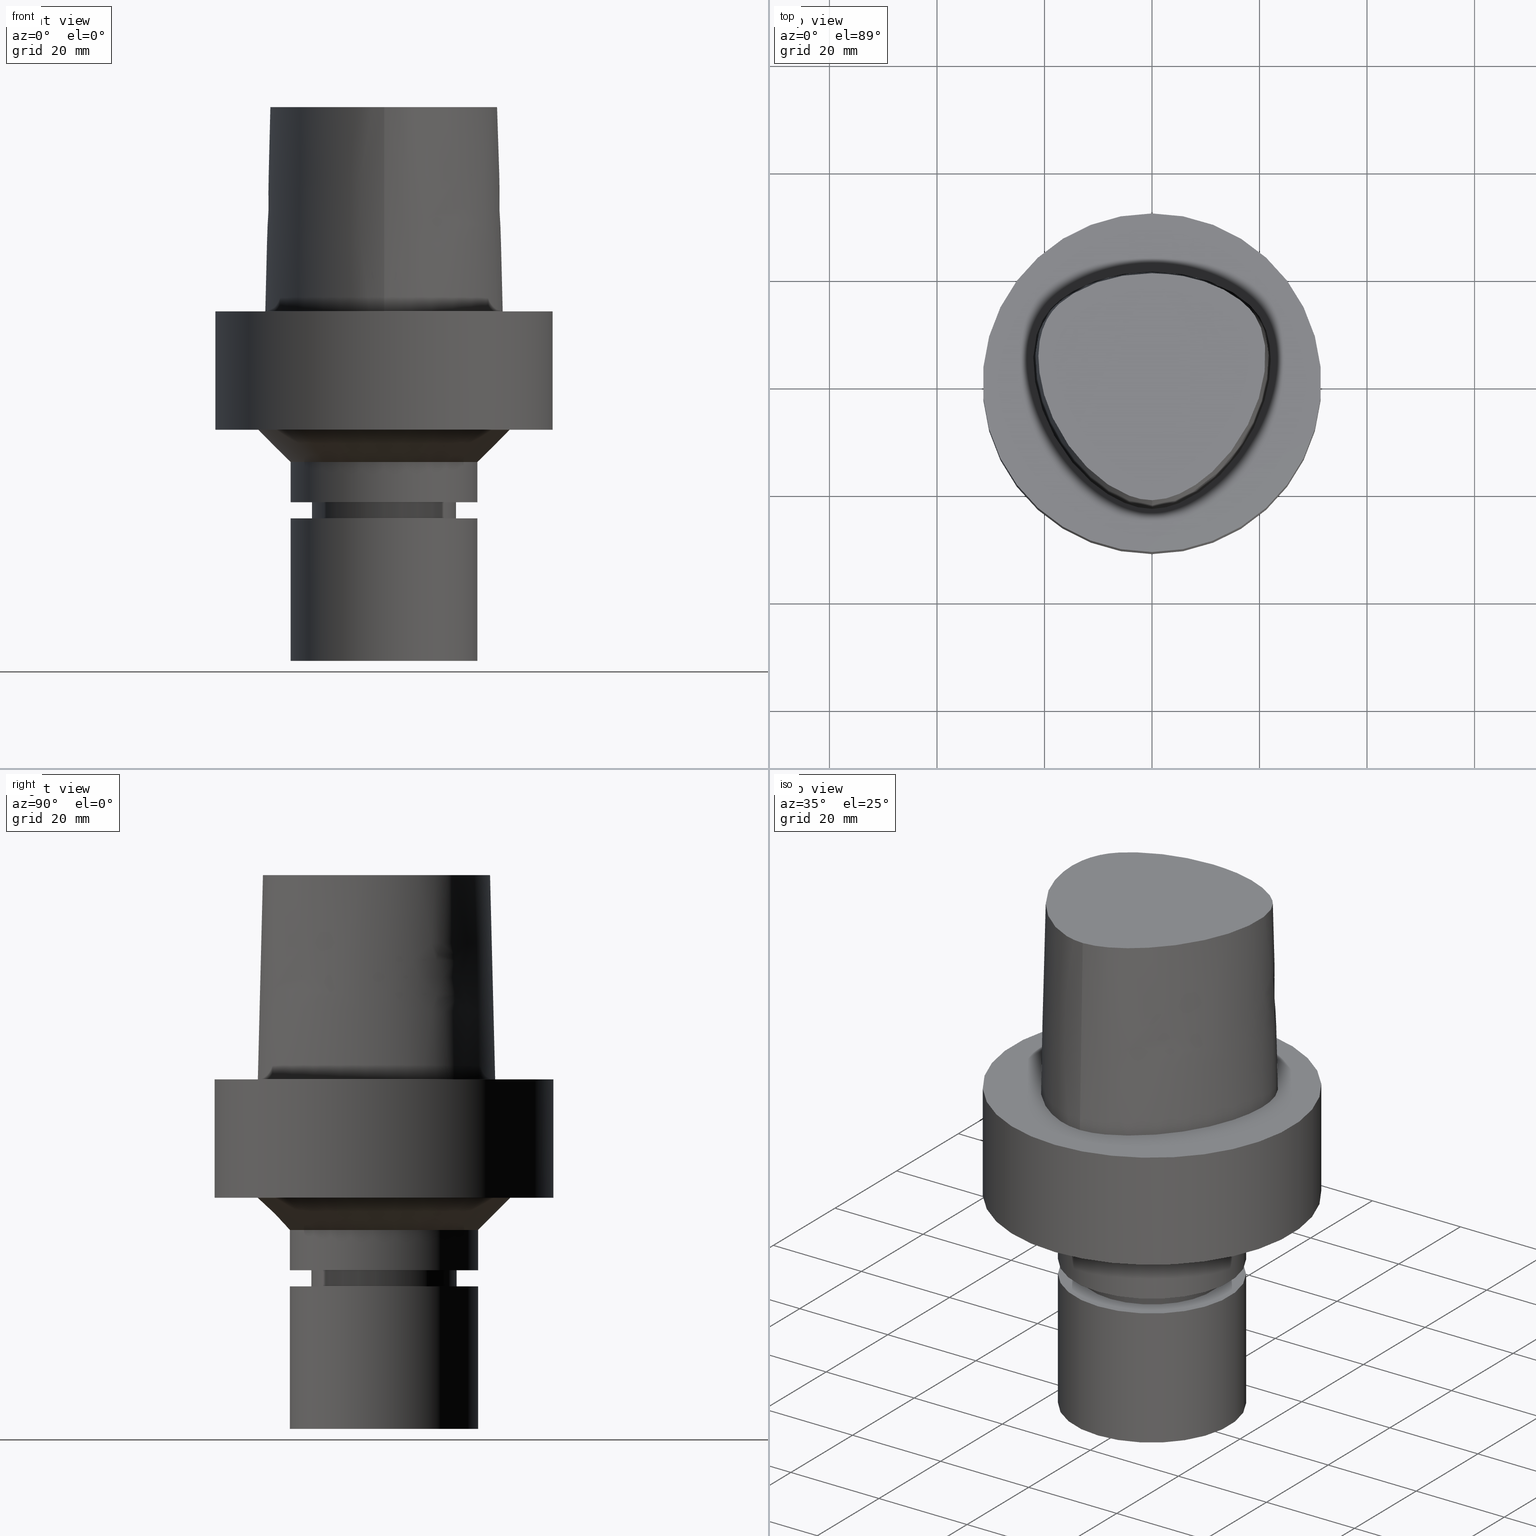
[diagram: canonical four-view strip — front | top / right | iso, engineering-drawing reading convention]
A machine part, canonical four-view strip (front | top / right | iso — engineering-drawing reading convention). The complete STEP part file that produces these views, byte-faithful:
ISO-10303-21;
HEADER;
FILE_DESCRIPTION((''),'1');
FILE_NAME('V:/90_\X2\53D65F9730C730FC30BF\X0\/00_\X2\6DE18DEF30C730FC30BF\X0\/ALL/CAPTO-BKUS\X2\52A05DE556F3\X0\_201801/C6-MEGAER/C6-MEGAER20-65NL.stp','2018-02-01T07:57:22',(''),(''),'Spatial Interop R21 SP3','Kubotek KeyCreator 2011 V10.0.2 (22737)',' ');
FILE_SCHEMA(('automotive_design'));
ENDSEC;
DATA;
#1=MECHANICAL_DESIGN_GEOMETRIC_PRESENTATION_REPRESENTATION(' ',(#14,#15,#16,#17,#18,#19,#20,#21,#22,#23,#24,#25,#26,#27,#28,#29,#30,#31,#32,#33,#34,#35,#36,#37,#38,#39,#40,#41,#42,#43,#44,#45,#46,#47,#48,#49,#50,#51,#52,#53),#10);
#2=PRODUCT_DEFINITION_CONTEXT('',#54,'design');
#3=APPLICATION_PROTOCOL_DEFINITION('INTERNATIONAL STANDARD','automotive_design',1994,#54);
#4=PRODUCT_CATEGORY_RELATIONSHIP('NONE','NONE',#55,#56);
#5=SHAPE_DEFINITION_REPRESENTATION(#57,#58);
#6=PRODUCT_DEFINITION_CONTEXT('',#59,'design');
#7=APPLICATION_PROTOCOL_DEFINITION('INTERNATIONAL STANDARD','automotive_design',1994,#59);
#8=PRODUCT_CATEGORY_RELATIONSHIP('NONE','NONE',#60,#61);
#9=SHAPE_DEFINITION_REPRESENTATION(#62,#63);
#10= (GEOMETRIC_REPRESENTATION_CONTEXT(3)GLOBAL_UNCERTAINTY_ASSIGNED_CONTEXT((#66))GLOBAL_UNIT_ASSIGNED_CONTEXT((#68,#69,#70))REPRESENTATION_CONTEXT('NONE','WORKSPACE'));
#14=STYLED_ITEM('',(#72,#73),#74);
#15=STYLED_ITEM('',(#75,#76),#77);
#16=STYLED_ITEM('',(#78),#79);
#17=STYLED_ITEM('',(#80),#81);
#18=STYLED_ITEM('',(#82),#83);
#19=STYLED_ITEM('',(#84),#85);
#20=STYLED_ITEM('',(#86,#87),#88);
#21=STYLED_ITEM('',(#89,#90),#91);
#22=STYLED_ITEM('',(#92,#93),#94);
#23=STYLED_ITEM('',(#95,#96),#97);
#24=STYLED_ITEM('',(#98),#99);
#25=STYLED_ITEM('',(#100),#101);
#26=STYLED_ITEM('',(#102,#103),#104);
#27=STYLED_ITEM('',(#105),#106);
#28=STYLED_ITEM('',(#107,#108),#109);
#29=STYLED_ITEM('',(#110,#111),#112);
#30=STYLED_ITEM('',(#113),#114);
#31=STYLED_ITEM('',(#115,#116),#117);
#32=STYLED_ITEM('',(#118),#119);
#33=STYLED_ITEM('',(#120,#121),#122);
#34=STYLED_ITEM('',(#123,#124),#125);
#35=STYLED_ITEM('',(#126,#127),#128);
#36=STYLED_ITEM('',(#129,#130),#131);
#37=STYLED_ITEM('',(#132),#133);
#38=STYLED_ITEM('',(#134,#135),#136);
#39=STYLED_ITEM('',(#137),#138);
#40=STYLED_ITEM('',(#139),#140);
#41=STYLED_ITEM('',(#141,#142),#143);
#42=STYLED_ITEM('',(#144),#145);
#43=STYLED_ITEM('',(#146,#147),#148);
#44=STYLED_ITEM('',(#149),#150);
#45=STYLED_ITEM('',(#151),#152);
#46=STYLED_ITEM('',(#153),#154);
#47=STYLED_ITEM('',(#155,#156),#157);
#48=STYLED_ITEM('',(#158),#159);
#49=STYLED_ITEM('',(#160),#161);
#50=STYLED_ITEM('',(#162,#163),#164);
#51=STYLED_ITEM('',(#165),#166);
#52=STYLED_ITEM('',(#167),#168);
#53=STYLED_ITEM('',(#169,#170),#171);
#54=APPLICATION_CONTEXT(' ');
#55=PRODUCT_CATEGORY('part','NONE');
#56=PRODUCT_RELATED_PRODUCT_CATEGORY('detail',' ',(#172));
#57=PRODUCT_DEFINITION_SHAPE('NONE','NONE',#173);
#58=ADVANCED_BREP_SHAPE_REPRESENTATION('Unnamed[1]',(#131,#174),#10);
#59=APPLICATION_CONTEXT(' ');
#60=PRODUCT_CATEGORY('part','NONE');
#61=PRODUCT_RELATED_PRODUCT_CATEGORY('detail',' ',(#175));
#62=PRODUCT_DEFINITION_SHAPE('NONE','NONE',#176);
#63=ADVANCED_BREP_SHAPE_REPRESENTATION('Unnamed[1]',(#125,#177),#10);
#66=UNCERTAINTY_MEASURE_WITH_UNIT(LENGTH_MEASURE(1.0E-006),#68,'','');
#68= (CONVERSION_BASED_UNIT('MILLIMETRE',#180)LENGTH_UNIT()NAMED_UNIT(#183));
#69= (NAMED_UNIT(#185)PLANE_ANGLE_UNIT()SI_UNIT($,.RADIAN.));
#70= (NAMED_UNIT(#185)SOLID_ANGLE_UNIT()SI_UNIT($,.STERADIAN.));
#72=PRESENTATION_STYLE_ASSIGNMENT((#191));
#73=PRESENTATION_STYLE_ASSIGNMENT((#192));
#74=ADVANCED_FACE('Unnamed[1]',(#193),#194,.T.);
#75=PRESENTATION_STYLE_ASSIGNMENT((#195));
#76=PRESENTATION_STYLE_ASSIGNMENT((#196));
#77=ADVANCED_FACE('Unnamed[1]',(#197,#198),#199,.T.);
#78=PRESENTATION_STYLE_ASSIGNMENT((#200));
#79=EDGE_CURVE('Unnamed[1]',#201,#201,#202,.T.);
#80=PRESENTATION_STYLE_ASSIGNMENT((#203));
#81=EDGE_CURVE('Unnamed[1]',#204,#204,#205,.T.);
#82=PRESENTATION_STYLE_ASSIGNMENT((#206));
#83=EDGE_CURVE('Unnamed[1]',#207,#208,#209,.T.);
#84=PRESENTATION_STYLE_ASSIGNMENT((#210));
#85=EDGE_CURVE('Unnamed[1]',#211,#212,#213,.T.);
#86=PRESENTATION_STYLE_ASSIGNMENT((#214));
#87=PRESENTATION_STYLE_ASSIGNMENT((#215));
#88=ADVANCED_FACE('Unnamed[1]',(#216,#217),#218,.T.);
#89=PRESENTATION_STYLE_ASSIGNMENT((#219));
#90=PRESENTATION_STYLE_ASSIGNMENT((#220));
#91=ADVANCED_FACE('Unnamed[1]',(#221,#222),#223,.T.);
#92=PRESENTATION_STYLE_ASSIGNMENT((#224));
#93=PRESENTATION_STYLE_ASSIGNMENT((#225));
#94=ADVANCED_FACE('Unnamed[1]',(#226,#227),#228,.T.);
#95=PRESENTATION_STYLE_ASSIGNMENT((#229));
#96=PRESENTATION_STYLE_ASSIGNMENT((#230));
#97=ADVANCED_FACE('Unnamed[1]',(#231,#232),#233,.T.);
#98=PRESENTATION_STYLE_ASSIGNMENT((#234));
#99=EDGE_CURVE('Unnamed[1]',#235,#211,#236,.T.);
#100=PRESENTATION_STYLE_ASSIGNMENT((#237));
#101=EDGE_CURVE('Unnamed[1]',#238,#238,#239,.T.);
#102=PRESENTATION_STYLE_ASSIGNMENT((#240));
#103=PRESENTATION_STYLE_ASSIGNMENT((#241));
#104=ADVANCED_FACE('Unnamed[1]',(#242),#243,.T.);
#105=PRESENTATION_STYLE_ASSIGNMENT((#244));
#106=EDGE_CURVE('Unnamed[1]',#245,#245,#246,.T.);
#107=PRESENTATION_STYLE_ASSIGNMENT((#247));
#108=PRESENTATION_STYLE_ASSIGNMENT((#248));
#109=ADVANCED_FACE('Unnamed[1]',(#249),#250,.T.);
#110=PRESENTATION_STYLE_ASSIGNMENT((#251));
#111=PRESENTATION_STYLE_ASSIGNMENT((#252));
#112=ADVANCED_FACE('Unnamed[1]',(#253,#254),#255,.T.);
#113=PRESENTATION_STYLE_ASSIGNMENT((#256));
#114=EDGE_CURVE('Unnamed[1]',#208,#207,#257,.T.);
#115=PRESENTATION_STYLE_ASSIGNMENT((#258));
#116=PRESENTATION_STYLE_ASSIGNMENT((#259));
#117=ADVANCED_FACE('Unnamed[1]',(#260,#261),#262,.T.);
#118=PRESENTATION_STYLE_ASSIGNMENT((#263));
#119=EDGE_CURVE('Unnamed[1]',#264,#264,#265,.T.);
#120=PRESENTATION_STYLE_ASSIGNMENT((#266));
#121=PRESENTATION_STYLE_ASSIGNMENT((#267));
#122=ADVANCED_FACE('Unnamed[1]',(#268,#269),#270,.T.);
#123=PRESENTATION_STYLE_ASSIGNMENT((#271));
#124=PRESENTATION_STYLE_ASSIGNMENT((#272));
#125=MANIFOLD_SOLID_BREP('Unnamed[1]',#273);
#126=PRESENTATION_STYLE_ASSIGNMENT((#274));
#127=PRESENTATION_STYLE_ASSIGNMENT((#275));
#128=ADVANCED_FACE('Unnamed[1]',(#276),#277,.T.);
#129=PRESENTATION_STYLE_ASSIGNMENT((#278));
#130=PRESENTATION_STYLE_ASSIGNMENT((#279));
#131=MANIFOLD_SOLID_BREP('Unnamed[1]',#280);
#132=PRESENTATION_STYLE_ASSIGNMENT((#281));
#133=EDGE_CURVE('Unnamed[1]',#208,#235,#282,.T.);
#134=PRESENTATION_STYLE_ASSIGNMENT((#283));
#135=PRESENTATION_STYLE_ASSIGNMENT((#284));
#136=ADVANCED_FACE('Unnamed[1]',(#285,#286),#287,.T.);
#137=PRESENTATION_STYLE_ASSIGNMENT((#288));
#138=EDGE_CURVE('Unnamed[1]',#289,#289,#290,.T.);
#139=PRESENTATION_STYLE_ASSIGNMENT((#291));
#140=EDGE_CURVE('Unnamed[1]',#292,#292,#293,.T.);
#141=PRESENTATION_STYLE_ASSIGNMENT((#294));
#142=PRESENTATION_STYLE_ASSIGNMENT((#295));
#143=ADVANCED_FACE('Unnamed[1]',(#296,#297),#298,.T.);
#144=PRESENTATION_STYLE_ASSIGNMENT((#299));
#145=EDGE_CURVE('Unnamed[1]',#300,#300,#301,.T.);
#146=PRESENTATION_STYLE_ASSIGNMENT((#302));
#147=PRESENTATION_STYLE_ASSIGNMENT((#303));
#148=ADVANCED_FACE('Unnamed[1]',(#304,#305),#306,.T.);
#149=PRESENTATION_STYLE_ASSIGNMENT((#307));
#150=EDGE_CURVE('Unnamed[1]',#212,#235,#308,.T.);
#151=PRESENTATION_STYLE_ASSIGNMENT((#309));
#152=EDGE_CURVE('Unnamed[1]',#310,#310,#311,.T.);
#153=PRESENTATION_STYLE_ASSIGNMENT((#312));
#154=EDGE_CURVE('Unnamed[1]',#313,#313,#314,.T.);
#155=PRESENTATION_STYLE_ASSIGNMENT((#315));
#156=PRESENTATION_STYLE_ASSIGNMENT((#316));
#157=ADVANCED_FACE('Unnamed[1]',(#317),#318,.T.);
#158=PRESENTATION_STYLE_ASSIGNMENT((#319));
#159=EDGE_CURVE('Unnamed[1]',#320,#320,#321,.T.);
#160=PRESENTATION_STYLE_ASSIGNMENT((#322));
#161=EDGE_CURVE('Unnamed[1]',#323,#323,#324,.T.);
#162=PRESENTATION_STYLE_ASSIGNMENT((#325));
#163=PRESENTATION_STYLE_ASSIGNMENT((#326));
#164=ADVANCED_FACE('Unnamed[1]',(#327),#328,.T.);
#165=PRESENTATION_STYLE_ASSIGNMENT((#329));
#166=EDGE_CURVE('Unnamed[1]',#207,#212,#330,.T.);
#167=PRESENTATION_STYLE_ASSIGNMENT((#331));
#168=EDGE_CURVE('Unnamed[1]',#208,#211,#332,.T.);
#169=PRESENTATION_STYLE_ASSIGNMENT((#333));
#170=PRESENTATION_STYLE_ASSIGNMENT((#334));
#171=ADVANCED_FACE('Unnamed[1]',(#335),#336,.T.);
#172=PRODUCT('Unnamed[1]','Unnamed[1]','PART-Unnamed[1]-DESC',(#337));
#173=PRODUCT_DEFINITION('NONE','NONE',#338,#2);
#174=AXIS2_PLACEMENT_3D('',#339,#340,#341);
#175=PRODUCT('Unnamed[1]','Unnamed[1]','PART-Unnamed[1]-DESC',(#342));
#176=PRODUCT_DEFINITION('NONE','NONE',#343,#6);
#177=AXIS2_PLACEMENT_3D('',#344,#345,#346);
#180=LENGTH_MEASURE_WITH_UNIT(LENGTH_MEASURE(1.0),#347);
#183=DIMENSIONAL_EXPONENTS(1.0,0.0,0.0,0.0,0.0,0.0,0.0);
#185=DIMENSIONAL_EXPONENTS(0.0,0.0,0.0,0.0,0.0,0.0,0.0);
#191=SURFACE_STYLE_USAGE(.BOTH.,#348);
#192=CURVE_STYLE('',#349,POSITIVE_LENGTH_MEASURE(1000.0),#350);
#193=FACE_OUTER_BOUND('',#351,.T.);
#194=CONICAL_SURFACE('',#352,1.0,0.0249931148600041);
#195=SURFACE_STYLE_USAGE(.BOTH.,#353);
#196=CURVE_STYLE('',#354,POSITIVE_LENGTH_MEASURE(1000.0),#355);
#197=FACE_BOUND('',#356,.T.);
#198=FACE_OUTER_BOUND('',#357,.T.);
#199=PLANE('',#358);
#200=CURVE_STYLE('',#359,POSITIVE_LENGTH_MEASURE(1000.0),#360);
#201=VERTEX_POINT('',#361);
#202=CIRCLE('',#362,17.4999999999999);
#203=CURVE_STYLE('',#363,POSITIVE_LENGTH_MEASURE(1000.0),#364);
#204=VERTEX_POINT('',#365);
#205=CIRCLE('',#366,12.4999999999999);
#206=CURVE_STYLE('',#367,POSITIVE_LENGTH_MEASURE(1000.0),#368);
#207=VERTEX_POINT('',#369);
#208=VERTEX_POINT('',#370);
#209=B_SPLINE_CURVE_WITH_KNOTS('',3,(#371,#372,#373,#374,#375,#376,#377,#378,#379,#380,#381,#382,#383,#384,#385,#386),.UNSPECIFIED.,.F.,.F.,(4,1,1,1,1,1,1,1,1,1,1,1,1,4),(6.61513393087476,6.99917207152274,7.48193246986995,7.96289324787093,8.45540287038584,9.10291653679981,9.67129810936083,10.1618749681153,10.6358867802489,11.1080734988593,11.6043706019633,12.09451993853,12.6985979284494,13.2302678617486),.UNSPECIFIED.);
#210=CURVE_STYLE('',#387,POSITIVE_LENGTH_MEASURE(1000.0),#388);
#211=VERTEX_POINT('',#389);
#212=VERTEX_POINT('',#390);
#213=B_SPLINE_CURVE_WITH_KNOTS('',3,(#391,#392,#393,#394,#395,#396,#397,#398,#399,#400,#401,#402,#403,#404,#405,#406,#407),.UNSPECIFIED.,.F.,.F.,(4,1,1,1,1,1,1,1,1,1,1,1,1,1,4),(-13.2302678617486,-12.816821991069,-12.4033761203893,-11.9899302497097,-11.57648437903,-11.1630385083504,-10.9563155730106,-10.7495926376707,-10.3361467669911,-9.92270089631145,-9.09580915495216,-8.26891741359287,-7.44202567223358,-7.02857980155394,-6.6151339308743),.UNSPECIFIED.);
#214=SURFACE_STYLE_USAGE(.BOTH.,#408);
#215=CURVE_STYLE('',#409,POSITIVE_LENGTH_MEASURE(1000.0),#410);
#216=FACE_BOUND('',#411,.T.);
#217=FACE_OUTER_BOUND('',#412,.T.);
#218=PLANE('',#413);
#219=SURFACE_STYLE_USAGE(.BOTH.,#414);
#220=CURVE_STYLE('',#415,POSITIVE_LENGTH_MEASURE(1000.0),#416);
#221=FACE_BOUND('',#417,.T.);
#222=FACE_BOUND('',#418,.T.);
#223=CYLINDRICAL_SURFACE('',#419,13.4999999999956);
#224=SURFACE_STYLE_USAGE(.BOTH.,#420);
#225=CURVE_STYLE('',#421,POSITIVE_LENGTH_MEASURE(1000.0),#422);
#226=FACE_BOUND('',#423,.T.);
#227=FACE_BOUND('',#424,.T.);
#228=CYLINDRICAL_SURFACE('',#425,12.4999999999999);
#229=SURFACE_STYLE_USAGE(.BOTH.,#426);
#230=CURVE_STYLE('',#427,POSITIVE_LENGTH_MEASURE(1000.0),#428);
#231=FACE_BOUND('',#429,.T.);
#232=FACE_OUTER_BOUND('',#430,.T.);
#233=PLANE('',#431);
#234=CURVE_STYLE('',#432,POSITIVE_LENGTH_MEASURE(1000.0),#433);
#235=VERTEX_POINT('',#434);
#236=CIRCLE('',#435,0.949936168436318);
#237=CURVE_STYLE('',#436,POSITIVE_LENGTH_MEASURE(1000.0),#437);
#238=VERTEX_POINT('',#438);
#239=CIRCLE('',#439,23.5);
#240=SURFACE_STYLE_USAGE(.BOTH.,#440);
#241=CURVE_STYLE('',#441,POSITIVE_LENGTH_MEASURE(1000.0),#442);
#242=FACE_OUTER_BOUND('',#443,.T.);
#243=PLANE('',#444);
#244=CURVE_STYLE('',#445,POSITIVE_LENGTH_MEASURE(1000.0),#446);
#245=VERTEX_POINT('',#447);
#246=CIRCLE('',#448,11.3999999999977);
#247=SURFACE_STYLE_USAGE(.BOTH.,#449);
#248=CURVE_STYLE('',#450,POSITIVE_LENGTH_MEASURE(1000.0),#451);
#249=FACE_OUTER_BOUND('',#452,.T.);
#250=PLANE('',#453);
#251=SURFACE_STYLE_USAGE(.BOTH.,#454);
#252=CURVE_STYLE('',#455,POSITIVE_LENGTH_MEASURE(1000.0),#456);
#253=FACE_BOUND('',#457,.T.);
#254=FACE_BOUND('',#458,.T.);
#255=CYLINDRICAL_SURFACE('',#459,17.5);
#256=CURVE_STYLE('',#460,POSITIVE_LENGTH_MEASURE(1000.0),#461);
#257=B_SPLINE_CURVE_WITH_KNOTS('',3,(#462,#463,#464,#465,#466,#467,#468,#469,#470,#471,#472,#473,#474,#475,#476,#477),.UNSPECIFIED.,.F.,.F.,(4,1,1,1,1,1,1,1,1,1,1,1,1,4),(0.0,0.447924670568964,0.9388024242536,1.50591409090711,2.07314340012323,2.72424957442464,3.2253501842849,3.80982102049476,4.34867996267067,4.85900173381144,5.37972031856977,6.03459825488646,6.61113557741484,6.61513393087395),.UNSPECIFIED.);
#258=SURFACE_STYLE_USAGE(.BOTH.,#478);
#259=CURVE_STYLE('',#479,POSITIVE_LENGTH_MEASURE(1000.0),#480);
#260=FACE_BOUND('',#481,.T.);
#261=FACE_BOUND('',#482,.T.);
#262=CYLINDRICAL_SURFACE('',#483,17.4999999999999);
#263=CURVE_STYLE('',#484,POSITIVE_LENGTH_MEASURE(1000.0),#485);
#264=VERTEX_POINT('',#486);
#265=CIRCLE('',#487,17.5);
#266=SURFACE_STYLE_USAGE(.BOTH.,#488);
#267=CURVE_STYLE('',#489,POSITIVE_LENGTH_MEASURE(1000.0),#490);
#268=FACE_BOUND('',#491,.T.);
#269=FACE_BOUND('',#492,.T.);
#270=CONICAL_SURFACE('',#493,20.5,0.785398163397451);
#271=SURFACE_STYLE_USAGE(.BOTH.,#494);
#272=CURVE_STYLE('',#495,POSITIVE_LENGTH_MEASURE(1000.0),#496);
#273=CLOSED_SHELL('',(#157,#109,#112));
#274=SURFACE_STYLE_USAGE(.BOTH.,#497);
#275=CURVE_STYLE('',#498,POSITIVE_LENGTH_MEASURE(1000.0),#499);
#276=FACE_OUTER_BOUND('',#500,.T.);
#277=PLANE('',#501);
#278=SURFACE_STYLE_USAGE(.BOTH.,#502);
#279=CURVE_STYLE('',#503,POSITIVE_LENGTH_MEASURE(1000.0),#504);
#280=CLOSED_SHELL('',(#164,#171,#74,#128,#97,#143,#77,#122,#117,#88,#91,#136,#94,#148,#104));
#281=CURVE_STYLE('',#505,POSITIVE_LENGTH_MEASURE(1000.0),#506);
#282=LINE('',#507,#508);
#283=SURFACE_STYLE_USAGE(.BOTH.,#509);
#284=CURVE_STYLE('',#510,POSITIVE_LENGTH_MEASURE(1000.0),#511);
#285=FACE_BOUND('',#512,.T.);
#286=FACE_BOUND('',#513,.T.);
#287=CONICAL_SURFACE('',#514,13.0000000000002,1.04719755119486);
#288=CURVE_STYLE('',#515,POSITIVE_LENGTH_MEASURE(1000.0),#516);
#289=VERTEX_POINT('',#517);
#290=CIRCLE('',#518,31.5);
#291=CURVE_STYLE('',#519,POSITIVE_LENGTH_MEASURE(1000.0),#520);
#292=VERTEX_POINT('',#521);
#293=CIRCLE('',#522,17.5);
#294=SURFACE_STYLE_USAGE(.BOTH.,#523);
#295=CURVE_STYLE('',#524,POSITIVE_LENGTH_MEASURE(1000.0),#525);
#296=FACE_BOUND('',#526,.T.);
#297=FACE_BOUND('',#527,.T.);
#298=CYLINDRICAL_SURFACE('',#528,31.5);
#299=CURVE_STYLE('',#529,POSITIVE_LENGTH_MEASURE(1000.0),#530);
#300=VERTEX_POINT('',#531);
#301=CIRCLE('',#532,17.4999999999999);
#302=SURFACE_STYLE_USAGE(.BOTH.,#533);
#303=CURVE_STYLE('',#534,POSITIVE_LENGTH_MEASURE(1000.0),#535);
#304=FACE_BOUND('',#536,.T.);
#305=FACE_BOUND('',#537,.T.);
#306=CONICAL_SURFACE('',#538,11.9499999999988,0.523598775598662);
#307=CURVE_STYLE('',#539,POSITIVE_LENGTH_MEASURE(1000.0),#540);
#308=B_SPLINE_CURVE_WITH_KNOTS('',3,(#541,#542,#543,#544,#545,#546,#547,#548,#549,#550,#551,#552,#553,#554,#555,#556,#557,#558),.UNSPECIFIED.,.F.,.F.,(4,1,1,1,1,1,1,1,1,2,1,1,1,1,4),(-6.6151339308743,-6.20168806019465,-5.78824218951501,-5.37479631883537,-4.96135044815572,-4.13445870679644,-3.30756696543715,-2.89412109475751,-2.48067522407786,-2.06722935339822,-1.65378348271857,-1.24033761203893,-0.826891741359287,-0.413445870679644,0.0),.UNSPECIFIED.);
#309=CURVE_STYLE('',#559,POSITIVE_LENGTH_MEASURE(1000.0),#560);
#310=VERTEX_POINT('',#561);
#311=CIRCLE('',#562,31.5);
#312=CURVE_STYLE('',#563,POSITIVE_LENGTH_MEASURE(1000.0),#564);
#313=VERTEX_POINT('',#565);
#314=CIRCLE('',#566,13.5000000000005);
#315=SURFACE_STYLE_USAGE(.BOTH.,#567);
#316=CURVE_STYLE('',#568,POSITIVE_LENGTH_MEASURE(1000.0),#569);
#317=FACE_OUTER_BOUND('',#570,.T.);
#318=PLANE('',#571);
#319=CURVE_STYLE('',#572,POSITIVE_LENGTH_MEASURE(1000.0),#573);
#320=VERTEX_POINT('',#574);
#321=CIRCLE('',#575,13.4999999999908);
#322=CURVE_STYLE('',#576,POSITIVE_LENGTH_MEASURE(1000.0),#577);
#323=VERTEX_POINT('',#578);
#324=CIRCLE('',#579,12.4999999999998);
#325=SURFACE_STYLE_USAGE(.BOTH.,#580);
#326=CURVE_STYLE('',#581,POSITIVE_LENGTH_MEASURE(1000.0),#582);
#327=FACE_OUTER_BOUND('',#583,.T.);
#328=B_SPLINE_SURFACE_WITH_KNOTS('',3,3,((#584,#585,#586,#587),(#588,#589,#590,#591),(#592,#593,#594,#595),(#596,#597,#598,#599),(#600,#601,#602,#603),(#604,#605,#606,#607),(#608,#609,#610,#611),(#612,#613,#614,#615),(#616,#617,#618,#619),(#620,#621,#622,#623),(#624,#625,#626,#627),(#628,#629,#630,#631),(#632,#633,#634,#635),(#636,#637,#638,#639),(#640,#641,#642,#643),(#644,#645,#646,#647),(#648,#649,#650,#651)),.UNSPECIFIED.,.F.,.F.,.F.,(4,1,1,1,1,1,1,1,1,1,1,1,1,1,4),(4,4),(-13.2302678617486,-12.816821991069,-12.4033761203893,-11.9899302497097,-11.57648437903,-11.1630385083504,-10.9563155730106,-10.7495926376707,-10.3361467669911,-9.92270089631145,-9.09580915495216,-8.26891741359287,-7.44202567223358,-7.02857980155394,-6.6151339308743),(-3.8,0.0),.UNSPECIFIED.);
#329=CURVE_STYLE('',#652,POSITIVE_LENGTH_MEASURE(1000.0),#653);
#330=LINE('',#654,#655);
#331=CURVE_STYLE('',#656,POSITIVE_LENGTH_MEASURE(1000.0),#657);
#332=LINE('',#658,#659);
#333=SURFACE_STYLE_USAGE(.BOTH.,#660);
#334=CURVE_STYLE('',#661,POSITIVE_LENGTH_MEASURE(1000.0),#662);
#335=FACE_OUTER_BOUND('',#663,.T.);
#336=B_SPLINE_SURFACE_WITH_KNOTS('',3,3,((#664,#665,#666,#667),(#668,#669,#670,#671),(#672,#673,#674,#675),(#676,#677,#678,#679),(#680,#681,#682,#683),(#684,#685,#686,#687),(#688,#689,#690,#691),(#692,#693,#694,#695),(#696,#697,#698,#699),(#700,#701,#702,#703),(#704,#705,#706,#707),(#708,#709,#710,#711),(#712,#713,#714,#715),(#716,#717,#718,#719),(#720,#721,#722,#723),(#724,#725,#726,#727),(#728,#729,#730,#731),(#732,#733,#734,#735)),.UNSPECIFIED.,.F.,.F.,.F.,(4,1,1,1,1,1,1,1,1,2,1,1,1,1,4),(4,4),(-6.6151339308743,-6.20168806019465,-5.78824218951501,-5.37479631883537,-4.96135044815572,-4.13445870679644,-3.30756696543715,-2.89412109475751,-2.48067522407786,-2.06722935339822,-1.65378348271857,-1.24033761203893,-0.826891741359287,-0.413445870679644,0.0),(-3.8,0.0),.UNSPECIFIED.);
#337=PRODUCT_CONTEXT('',#54,'mechanical');
#338=PRODUCT_DEFINITION_FORMATION_WITH_SPECIFIED_SOURCE(' ','NONE',#172,.NOT_KNOWN.);
#339=CARTESIAN_POINT('',(0.0,0.0,0.0));
#340=DIRECTION('',(0.0,0.0,1.0));
#341=DIRECTION('',(1.0,0.0,0.0));
#342=PRODUCT_CONTEXT('',#59,'mechanical');
#343=PRODUCT_DEFINITION_FORMATION_WITH_SPECIFIED_SOURCE(' ','NONE',#175,.NOT_KNOWN.);
#344=CARTESIAN_POINT('',(0.0,0.0,0.0));
#345=DIRECTION('',(0.0,0.0,1.0));
#346=DIRECTION('',(1.0,0.0,0.0));
#347= (NAMED_UNIT(#183)LENGTH_UNIT()SI_UNIT(.MILLI.,.METRE.));
#348=SURFACE_SIDE_STYLE('',(#737));
#349=DRAUGHTING_PRE_DEFINED_CURVE_FONT('continuous');
#350=COLOUR_RGB('',0.0,1.0,0.0);
#351=EDGE_LOOP('',(#738,#739,#740));
#352=AXIS2_PLACEMENT_3D('',#741,#742,#743);
#353=SURFACE_SIDE_STYLE('',(#744));
#354=DRAUGHTING_PRE_DEFINED_CURVE_FONT('continuous');
#355=COLOUR_RGB('',0.0,1.0,0.0);
#356=EDGE_LOOP('',(#745));
#357=EDGE_LOOP('',(#746));
#358=AXIS2_PLACEMENT_3D('',#747,#748,#749);
#359=DRAUGHTING_PRE_DEFINED_CURVE_FONT('continuous');
#360=COLOUR_RGB('',0.0,1.0,0.0);
#361=CARTESIAN_POINT('',(2.17374806848654E-015,17.4999999999999,-35.4999999999998));
#362=AXIS2_PLACEMENT_3D('',#750,#751,#752);
#363=DRAUGHTING_PRE_DEFINED_CURVE_FONT('continuous');
#364=COLOUR_RGB('',0.0,1.0,0.0);
#365=CARTESIAN_POINT('',(2.56561515194494E-015,12.4999999999999,-41.8996751345975));
#366=AXIS2_PLACEMENT_3D('',#753,#754,#755);
#367=DRAUGHTING_PRE_DEFINED_CURVE_FONT('continuous');
#368=COLOUR_RGB('',0.0,1.0,0.0);
#369=CARTESIAN_POINT('',(0.038736923393866,-22.5191997536361,38.0));
#370=CARTESIAN_POINT('',(-0.001218547003662,19.7276821925089,38.0));
#371=CARTESIAN_POINT('',(0.038736923394311,-22.519199753636,38.0));
#372=CARTESIAN_POINT('',(1.31742058183662,-22.512662269405,38.0));
#373=CARTESIAN_POINT('',(4.2093773447498,-21.9116226439989,38.0));
#374=CARTESIAN_POINT('',(8.20895504542113,-19.7798683845067,38.0));
#375=CARTESIAN_POINT('',(11.9784633234593,-16.681663904162,38.0));
#376=CARTESIAN_POINT('',(15.5308821579362,-12.5807487594113,38.0));
#377=CARTESIAN_POINT('',(18.4566248438667,-7.64932246015528,38.0));
#378=CARTESIAN_POINT('',(20.4036090752029,-2.27012499825289,38.0));
#379=CARTESIAN_POINT('',(21.2357187429189,2.79891401173156,38.0));
#380=CARTESIAN_POINT('',(21.0811206267748,7.62543090736657,38.0));
#381=CARTESIAN_POINT('',(19.3383577336563,12.2772250726194,38.0));
#382=CARTESIAN_POINT('',(15.5796322014404,15.5799672120682,38.0));
#383=CARTESIAN_POINT('',(10.8392956074438,17.9834601687347,38.0));
#384=CARTESIAN_POINT('',(5.56068045850571,19.4586143858472,38.0));
#385=CARTESIAN_POINT('',(1.77223893711014,19.6418877095654,38.0));
#386=CARTESIAN_POINT('',(-0.001218367817519,19.7276822012873,38.0));
#387=DRAUGHTING_PRE_DEFINED_CURVE_FONT('continuous');
#388=COLOUR_RGB('',0.0,1.0,0.0);
#389=CARTESIAN_POINT('',(0.044682985379347,20.6765087343109,1.61778115328528E-031));
#390=CARTESIAN_POINT('',(0.04359356758149,-23.4691235068931,7.78075697532443E-032));
#391=CARTESIAN_POINT('',(0.044682985379347,20.6765087343109,1.61778115328528E-031));
#392=CARTESIAN_POINT('',(1.42379272427753,20.6097915814392,8.62816615085482E-032));
#393=CARTESIAN_POINT('',(4.2230955003445,20.4837538303966,1.4791141972894E-031));
#394=CARTESIAN_POINT('',(8.47220762821777,19.6890432607088,9.86076131526265E-032));
#395=CARTESIAN_POINT('',(12.5141247708253,18.2434968480404,0.0));
#396=CARTESIAN_POINT('',(16.3038624872874,16.1734192182143,1.97215226305253E-031));
#397=CARTESIAN_POINT('',(19.1446913988473,13.7036723639434,-1.97215226305253E-031));
#398=CARTESIAN_POINT('',(20.7319894342149,11.1014620996188,0.0));
#399=CARTESIAN_POINT('',(21.7831756505763,8.28099229708081,-1.97215226305253E-031));
#400=CARTESIAN_POINT('',(22.2258240701438,4.60865440596506,0.0));
#401=CARTESIAN_POINT('',(21.7436130080666,-1.11326526354485,0.0));
#402=CARTESIAN_POINT('',(19.5519487660502,-7.95432366164584,0.0));
#403=CARTESIAN_POINT('',(14.9574167123838,-15.2089785567293,0.0));
#404=CARTESIAN_POINT('',(9.66840283021945,-20.0827414369705,-9.86076131526265E-032));
#405=CARTESIAN_POINT('',(4.51628650521788,-22.7946374572188,-9.86076131526265E-032));
#406=CARTESIAN_POINT('',(1.55867251738073,-23.4612972770043,-1.23259516440783E-032));
#407=CARTESIAN_POINT('',(0.04359356758149,-23.4691235068931,7.78075697532443E-032));
#408=SURFACE_SIDE_STYLE('',(#756));
#409=DRAUGHTING_PRE_DEFINED_CURVE_FONT('continuous');
#410=COLOUR_RGB('',0.0,1.0,0.0);
#411=EDGE_LOOP('',(#757));
#412=EDGE_LOOP('',(#758));
#413=AXIS2_PLACEMENT_3D('',#759,#760,#761);
#414=SURFACE_SIDE_STYLE('',(#762));
#415=DRAUGHTING_PRE_DEFINED_CURVE_FONT('continuous');
#416=COLOUR_RGB('',0.0,1.0,0.0);
#417=EDGE_LOOP('',(#763));
#418=EDGE_LOOP('',(#764));
#419=AXIS2_PLACEMENT_3D('',#765,#766,#767);
#420=SURFACE_SIDE_STYLE('',(#768));
#421=DRAUGHTING_PRE_DEFINED_CURVE_FONT('continuous');
#422=COLOUR_RGB('',0.0,1.0,0.0);
#423=EDGE_LOOP('',(#769));
#424=EDGE_LOOP('',(#770));
#425=AXIS2_PLACEMENT_3D('',#771,#772,#773);
#426=SURFACE_SIDE_STYLE('',(#774));
#427=DRAUGHTING_PRE_DEFINED_CURVE_FONT('continuous');
#428=COLOUR_RGB('',0.0,1.0,0.0);
#429=EDGE_LOOP('',(#775,#776,#777));
#430=EDGE_LOOP('',(#778));
#431=AXIS2_PLACEMENT_3D('',#779,#780,#781);
#432=DRAUGHTING_PRE_DEFINED_CURVE_FONT('continuous');
#433=COLOUR_RGB('',0.0,1.0,0.0);
#434=CARTESIAN_POINT('',(-0.045171994691285,20.6766009553285,1.6755590516169E-031));
#435=AXIS2_PLACEMENT_3D('',#782,#783,#784);
#436=DRAUGHTING_PRE_DEFINED_CURVE_FONT('continuous');
#437=COLOUR_RGB('',0.0,1.0,0.0);
#438=CARTESIAN_POINT('',(1.34711147906209E-015,23.5,-22.0));
#439=AXIS2_PLACEMENT_3D('',#785,#786,#787);
#440=SURFACE_SIDE_STYLE('',(#788));
#441=DRAUGHTING_PRE_DEFINED_CURVE_FONT('continuous');
#442=COLOUR_RGB('',0.0,1.0,0.0);
#443=EDGE_LOOP('',(#789));
#444=AXIS2_PLACEMENT_3D('',#790,#791,#792);
#445=DRAUGHTING_PRE_DEFINED_CURVE_FONT('continuous');
#446=COLOUR_RGB('',0.0,1.0,0.0);
#447=CARTESIAN_POINT('',(3.38002516564671E-015,11.3999999999977,-55.2000000000003));
#448=AXIS2_PLACEMENT_3D('',#793,#794,#795);
#449=SURFACE_SIDE_STYLE('',(#796));
#450=DRAUGHTING_PRE_DEFINED_CURVE_FONT('continuous');
#451=COLOUR_RGB('',0.0,1.0,0.0);
#452=EDGE_LOOP('',(#797));
#453=AXIS2_PLACEMENT_3D('',#798,#799,#800);
#454=SURFACE_SIDE_STYLE('',(#801));
#455=DRAUGHTING_PRE_DEFINED_CURVE_FONT('continuous');
#456=COLOUR_RGB('',0.0,1.0,0.0);
#457=EDGE_LOOP('',(#802));
#458=EDGE_LOOP('',(#803));
#459=AXIS2_PLACEMENT_3D('',#804,#805,#806);
#460=DRAUGHTING_PRE_DEFINED_CURVE_FONT('continuous');
#461=COLOUR_RGB('',0.0,1.0,0.0);
#462=CARTESIAN_POINT('',(-0.001218547003662,19.7276821925089,38.0));
#463=CARTESIAN_POINT('',(-1.49408492138443,19.6585333605309,38.0));
#464=CARTESIAN_POINT('',(-4.62297391420352,19.513604770166,38.0));
#465=CARTESIAN_POINT('',(-9.56160616752212,18.4291575730197,38.0));
#466=CARTESIAN_POINT('',(-14.5427684976927,16.2697452580488,38.0));
#467=CARTESIAN_POINT('',(-19.4315563551602,12.5302108980807,38.0));
#468=CARTESIAN_POINT('',(-21.306358833612,6.76352894547076,38.0));
#469=CARTESIAN_POINT('',(-21.0724946936277,0.957075236984038,38.0));
#470=CARTESIAN_POINT('',(-19.7876470880144,-4.34628503581652,38.0));
#471=CARTESIAN_POINT('',(-17.5396999600095,-9.33314444653089,38.0));
#472=CARTESIAN_POINT('',(-14.645447733857,-13.7185760345629,38.0));
#473=CARTESIAN_POINT('',(-10.7996726536643,-17.856257282137,38.0));
#474=CARTESIAN_POINT('',(-6.00479510196376,-21.2687382067675,38.0));
#475=CARTESIAN_POINT('',(-1.90747171908525,-22.5250621415864,38.0));
#476=CARTESIAN_POINT('',(0.025424107066464,-22.5192678176378,38.0));
#477=CARTESIAN_POINT('',(0.038736923394311,-22.519199753636,38.0));
#478=SURFACE_SIDE_STYLE('',(#807));
#479=DRAUGHTING_PRE_DEFINED_CURVE_FONT('continuous');
#480=COLOUR_RGB('',0.0,1.0,0.0);
#481=EDGE_LOOP('',(#808));
#482=EDGE_LOOP('',(#809));
#483=AXIS2_PLACEMENT_3D('',#810,#811,#812);
#484=DRAUGHTING_PRE_DEFINED_CURVE_FONT('continuous');
#485=COLOUR_RGB('',0.0,1.0,0.0);
#486=CARTESIAN_POINT('',(3.98010209722889E-015,17.5,-64.9999999999999));
#487=AXIS2_PLACEMENT_3D('',#813,#814,#815);
#488=SURFACE_SIDE_STYLE('',(#816));
#489=DRAUGHTING_PRE_DEFINED_CURVE_FONT('continuous');
#490=COLOUR_RGB('',0.0,1.0,0.0);
#491=EDGE_LOOP('',(#817));
#492=EDGE_LOOP('',(#818));
#493=AXIS2_PLACEMENT_3D('',#819,#820,#821);
#494=SURFACE_SIDE_STYLE('',(#822));
#495=DRAUGHTING_PRE_DEFINED_CURVE_FONT('continuous');
#496=COLOUR_RGB('',0.0,1.0,0.0);
#497=SURFACE_SIDE_STYLE('',(#823));
#498=DRAUGHTING_PRE_DEFINED_CURVE_FONT('continuous');
#499=COLOUR_RGB('',0.0,1.0,0.0);
#500=EDGE_LOOP('',(#824,#825));
#501=AXIS2_PLACEMENT_3D('',#826,#827,#828);
#502=SURFACE_SIDE_STYLE('',(#829));
#503=DRAUGHTING_PRE_DEFINED_CURVE_FONT('continuous');
#504=COLOUR_RGB('',0.0,1.0,0.0);
#505=DRAUGHTING_PRE_DEFINED_CURVE_FONT('continuous');
#506=COLOUR_RGB('',0.0,1.0,0.0);
#507=CARTESIAN_POINT('',(-0.001218547003662,19.7276821925089,38.0));
#508=VECTOR('',#830,38.0118715498723);
#509=SURFACE_SIDE_STYLE('',(#831));
#510=DRAUGHTING_PRE_DEFINED_CURVE_FONT('continuous');
#511=COLOUR_RGB('',0.0,1.0,0.0);
#512=EDGE_LOOP('',(#832));
#513=EDGE_LOOP('',(#833));
#514=AXIS2_PLACEMENT_3D('',#834,#835,#836);
#515=DRAUGHTING_PRE_DEFINED_CURVE_FONT('continuous');
#516=COLOUR_RGB('',0.0,1.0,0.0);
#517=CARTESIAN_POINT('',(1.34711147906212E-015,31.5,-22.0000000000006));
#518=AXIS2_PLACEMENT_3D('',#837,#838,#839);
#519=DRAUGHTING_PRE_DEFINED_CURVE_FONT('continuous');
#520=COLOUR_RGB('',0.0,1.0,0.0);
#521=CARTESIAN_POINT('',(2.35744602269002E-015,17.5,-38.5000152587891));
#522=AXIS2_PLACEMENT_3D('',#840,#841,#842);
#523=SURFACE_SIDE_STYLE('',(#843));
#524=DRAUGHTING_PRE_DEFINED_CURVE_FONT('continuous');
#525=COLOUR_RGB('',0.0,1.0,0.0);
#526=EDGE_LOOP('',(#844));
#527=EDGE_LOOP('',(#845));
#528=AXIS2_PLACEMENT_3D('',#846,#847,#848);
#529=DRAUGHTING_PRE_DEFINED_CURVE_FONT('continuous');
#530=COLOUR_RGB('',0.0,1.0,0.0);
#531=CARTESIAN_POINT('',(1.71450551880629E-015,17.4999999999999,-28.0));
#532=AXIS2_PLACEMENT_3D('',#849,#850,#851);
#533=SURFACE_SIDE_STYLE('',(#852));
#534=DRAUGHTING_PRE_DEFINED_CURVE_FONT('continuous');
#535=COLOUR_RGB('',0.0,1.0,0.0);
#536=EDGE_LOOP('',(#853));
#537=EDGE_LOOP('',(#854));
#538=AXIS2_PLACEMENT_3D('',#855,#856,#857);
#539=DRAUGHTING_PRE_DEFINED_CURVE_FONT('continuous');
#540=COLOUR_RGB('',0.0,1.0,0.0);
#541=CARTESIAN_POINT('',(0.04359356758149,-23.4691235068931,7.78075697532443E-032));
#542=CARTESIAN_POINT('',(-1.4714994713963,-23.4767895315797,2.46519032881566E-032));
#543=CARTESIAN_POINT('',(-4.43923476371401,-22.821149804767,-4.93038065763132E-032));
#544=CARTESIAN_POINT('',(-8.35043230079961,-20.8000751253325,-9.86076131526265E-032));
#545=CARTESIAN_POINT('',(-11.744900222602,-18.1556117874078,-1.97215226305253E-031));
#546=CARTESIAN_POINT('',(-15.6989602501314,-14.0406306929147,-1.97215226305253E-031));
#547=CARTESIAN_POINT('',(-19.5352875070682,-8.00624990770787,1.97215226305253E-031));
#548=CARTESIAN_POINT('',(-21.7205626190491,-1.16081708945282,0.0));
#549=CARTESIAN_POINT('',(-22.2486616783342,4.54965558738736,0.0));
#550=CARTESIAN_POINT('',(-21.6646421256468,9.00229539124618,0.0));
#551=CARTESIAN_POINT('',(-20.3945635471922,11.7780544971003,0.0));
#552=CARTESIAN_POINT('',(-18.5925528034471,14.1980602922581,0.0));
#553=CARTESIAN_POINT('',(-16.3226584122258,16.1777748720707,0.0));
#554=CARTESIAN_POINT('',(-12.5076407874579,18.2524201541303,9.86076131526265E-032));
#555=CARTESIAN_POINT('',(-8.46776192107786,19.679114377952,9.86076131526265E-032));
#556=CARTESIAN_POINT('',(-4.23043497193604,20.487781597334,1.97215226305253E-031));
#557=CARTESIAN_POINT('',(-1.42313094248379,20.6127745766442,1.10933564796705E-031));
#558=CARTESIAN_POINT('',(-0.045171994691285,20.6766009553285,1.6755590516169E-031));
#559=DRAUGHTING_PRE_DEFINED_CURVE_FONT('continuous');
#560=COLOUR_RGB('',0.0,1.0,0.0);
#561=CARTESIAN_POINT('',(-3.88267476788467E-031,31.5,3.85763741731416E-015));
#562=AXIS2_PLACEMENT_3D('',#858,#859,#860);
#563=DRAUGHTING_PRE_DEFINED_CURVE_FONT('continuous');
#564=COLOUR_RGB('',0.0,1.0,0.0);
#565=CARTESIAN_POINT('',(2.53026264398728E-015,13.5000000000005,-41.3223248654052));
#566=AXIS2_PLACEMENT_3D('',#861,#862,#863);
#567=SURFACE_SIDE_STYLE('',(#864));
#568=DRAUGHTING_PRE_DEFINED_CURVE_FONT('continuous');
#569=COLOUR_RGB('',0.0,1.0,0.0);
#570=EDGE_LOOP('',(#865));
#571=AXIS2_PLACEMENT_3D('',#866,#867,#868);
#572=DRAUGHTING_PRE_DEFINED_CURVE_FONT('continuous');
#573=COLOUR_RGB('',0.0,1.0,0.0);
#574=CARTESIAN_POINT('',(2.17374806848654E-015,13.4999999999908,-35.4999999999998));
#575=AXIS2_PLACEMENT_3D('',#869,#870,#871);
#576=DRAUGHTING_PRE_DEFINED_CURVE_FONT('continuous');
#577=COLOUR_RGB('',0.0,1.0,0.0);
#578=CARTESIAN_POINT('',(3.26336188938685E-015,12.4999999999998,-53.2947441116726));
#579=AXIS2_PLACEMENT_3D('',#872,#873,#874);
#580=SURFACE_SIDE_STYLE('',(#875));
#581=DRAUGHTING_PRE_DEFINED_CURVE_FONT('continuous');
#582=COLOUR_RGB('',0.0,1.0,0.0);
#583=EDGE_LOOP('',(#876,#877,#878,#879));
#584=CARTESIAN_POINT('',(-0.001218367817519,19.7276822012873,38.0));
#585=CARTESIAN_POINT('',(0.014082083248157,20.0439577123075,25.3333333333066));
#586=CARTESIAN_POINT('',(0.029382534313671,20.3602332232908,12.6666666666934));
#587=CARTESIAN_POINT('',(0.044682985379347,20.6765087343109,1.61778115328528E-031));
#588=CARTESIAN_POINT('',(1.37788651195108,19.6609652834875,38.0));
#589=CARTESIAN_POINT('',(1.3931885827258,19.9772407169847,25.3333333333066));
#590=CARTESIAN_POINT('',(1.40849065356095,20.2935162254648,12.6666666666934));
#591=CARTESIAN_POINT('',(1.42379272427753,20.6097915814392,8.62816615085482E-032));
#592=CARTESIAN_POINT('',(4.135446440878,19.5347778787784,38.0));
#593=CARTESIAN_POINT('',(4.16466278851883,19.8511031866125,25.3333333333066));
#594=CARTESIAN_POINT('',(4.1938791526746,20.1674284644204,12.6666666666934));
#595=CARTESIAN_POINT('',(4.2230955003445,20.4837538303966,1.4791141972894E-031));
#596=CARTESIAN_POINT('',(8.213607363795,18.7706026638736,38.0));
#597=CARTESIAN_POINT('',(8.29980745008421,19.0767495109635,25.3333333333066));
#598=CARTESIAN_POINT('',(8.38600751285747,19.3828964329996,12.6666666666934));
#599=CARTESIAN_POINT('',(8.47220762821777,19.6890432607088,9.86076131526265E-032));
#600=CARTESIAN_POINT('',(12.1316338645671,17.3698624840857,38.0));
#601=CARTESIAN_POINT('',(12.2591308270381,17.6610739397708,25.3333333333066));
#602=CARTESIAN_POINT('',(12.3866278083543,17.9522853923553,12.6666666666934));
#603=CARTESIAN_POINT('',(12.5141247708253,18.2434968480404,0.0));
#604=CARTESIAN_POINT('',(15.7706546153679,15.3789501349612,38.0));
#605=CARTESIAN_POINT('',(15.9483905900895,15.6437731794811,25.3333333333066));
#606=CARTESIAN_POINT('',(16.1261265513272,15.9085961736944,12.6666666666934));
#607=CARTESIAN_POINT('',(16.3038624872874,16.1734192182143,1.97215226305253E-031));
#608=CARTESIAN_POINT('',(18.4265894256284,13.0570022172893,38.0));
#609=CARTESIAN_POINT('',(18.6659567517146,13.2725589420689,25.3333333333066));
#610=CARTESIAN_POINT('',(18.9053240921419,13.4881156488541,12.6666666666934));
#611=CARTESIAN_POINT('',(19.1446913988473,13.7036723639434,-1.97215226305253E-031));
#612=CARTESIAN_POINT('',(19.8679958653038,10.6923771981998,38.0));
#613=CARTESIAN_POINT('',(20.1559937048299,10.8287388264873,25.3333333333066));
#614=CARTESIAN_POINT('',(20.4439915656177,10.965100461641,12.6666666666934));
#615=CARTESIAN_POINT('',(20.7319894342149,11.1014620996188,0.0));
#616=CARTESIAN_POINT('',(20.8470867582337,8.07149548576131,38.0));
#617=CARTESIAN_POINT('',(21.1591164072431,8.14132775555392,25.3333333333066));
#618=CARTESIAN_POINT('',(21.4711459821861,8.21116003697855,12.6666666666934));
#619=CARTESIAN_POINT('',(21.7831756505763,8.28099229708081,-1.97215226305253E-031));
#620=CARTESIAN_POINT('',(21.2693244256982,4.61157245650171,38.0));
#621=CARTESIAN_POINT('',(21.5881576801997,4.6105997689982,25.3333333333066));
#622=CARTESIAN_POINT('',(21.9069908544037,4.60962709346857,12.6666666666934));
#623=CARTESIAN_POINT('',(22.2258240701438,4.60865440596506,0.0));
#624=CARTESIAN_POINT('',(20.8071610855575,-0.912828649855193,38.0));
#625=CARTESIAN_POINT('',(21.119311671178,-0.979640884839481,25.3333333333066));
#626=CARTESIAN_POINT('',(21.4314624224461,-1.04645306732201,12.6666666666934));
#627=CARTESIAN_POINT('',(21.7436130080666,-1.11326526354485,0.0));
#628=CARTESIAN_POINT('',(18.6841935581315,-7.54428794252837,38.0));
#629=CARTESIAN_POINT('',(18.9734452551861,-7.6809665891091,25.3333333333066));
#630=CARTESIAN_POINT('',(19.2626970689956,-7.81764505382656,12.6666666666934));
#631=CARTESIAN_POINT('',(19.5519487660502,-7.95432366164584,0.0));
#632=CARTESIAN_POINT('',(14.2175552814,-14.5971504342323,38.0));
#633=CARTESIAN_POINT('',(14.4641757465198,-14.8010930946929,25.3333333333066));
#634=CARTESIAN_POINT('',(14.710796247264,-15.0050359737917,12.6666666666934));
#635=CARTESIAN_POINT('',(14.9574167123838,-15.2089785567293,0.0));
#636=CARTESIAN_POINT('',(9.0844808732933,-19.3179298129689,38.0));
#637=CARTESIAN_POINT('',(9.27912152349017,-19.572866915557,25.3333333333066));
#638=CARTESIAN_POINT('',(9.47376218971294,-19.827804295621,12.6666666666934));
#639=CARTESIAN_POINT('',(9.66840283021945,-20.0827414369705,-9.86076131526265E-032));
#640=CARTESIAN_POINT('',(4.17112919194182,-21.8987568152736,38.0));
#641=CARTESIAN_POINT('',(4.28618163483998,-22.1973837173649,25.3333333333066));
#642=CARTESIAN_POINT('',(4.40123406239433,-22.4960105163661,12.6666666666934));
#643=CARTESIAN_POINT('',(4.51628650521788,-22.7946374572188,-9.86076131526265E-032));
#644=CARTESIAN_POINT('',(1.41533654381097,-22.5120888467812,38.0));
#645=CARTESIAN_POINT('',(1.46311520162011,-22.8284916374445,25.3333333333066));
#646=CARTESIAN_POINT('',(1.51089385942236,-23.144894486341,12.6666666666934));
#647=CARTESIAN_POINT('',(1.55867251738073,-23.4612972770043,-1.23259516440783E-032));
#648=CARTESIAN_POINT('',(0.038736923393866,-22.5191997536361,38.0));
#649=CARTESIAN_POINT('',(0.04035580478973,-22.8358410047159,25.3333333333066));
#650=CARTESIAN_POINT('',(0.041974686185626,-23.1524822558133,12.6666666666934));
#651=CARTESIAN_POINT('',(0.04359356758149,-23.4691235068931,7.78075697532443E-032));
#652=DRAUGHTING_PRE_DEFINED_CURVE_FONT('continuous');
#653=COLOUR_RGB('',0.0,1.0,0.0);
#654=CARTESIAN_POINT('',(0.038736923393866,-22.5191997536361,38.0));
#655=VECTOR('',#880,38.0118715498723);
#656=DRAUGHTING_PRE_DEFINED_CURVE_FONT('continuous');
#657=COLOUR_RGB('',0.0,1.0,0.0);
#658=CARTESIAN_POINT('',(-0.001218547003662,19.7276821925089,38.0));
#659=VECTOR('',#881,38.0118715503078);
#660=SURFACE_SIDE_STYLE('',(#882));
#661=DRAUGHTING_PRE_DEFINED_CURVE_FONT('continuous');
#662=COLOUR_RGB('',0.0,1.0,0.0);
#663=EDGE_LOOP('',(#883,#884,#885,#886));
#664=CARTESIAN_POINT('',(0.038736923393866,-22.5191997536361,38.0));
#665=CARTESIAN_POINT('',(0.04035580478973,-22.8358410047159,25.3333333333066));
#666=CARTESIAN_POINT('',(0.041974686185626,-23.1524822558133,12.6666666666934));
#667=CARTESIAN_POINT('',(0.04359356758149,-23.4691235068931,7.78075697532443E-032));
#668=CARTESIAN_POINT('',(-1.33786123484754,-22.5261650259856,38.0));
#669=CARTESIAN_POINT('',(-1.38240731367927,-22.8430399310626,25.3333333333066));
#670=CARTESIAN_POINT('',(-1.42695339249092,-23.1599147815484,12.6666666666934));
#671=CARTESIAN_POINT('',(-1.4714994713963,-23.4767895315797,2.46519032881566E-032));
#672=CARTESIAN_POINT('',(-4.08909358431842,-21.9268839879558,38.0));
#673=CARTESIAN_POINT('',(-4.20580731135515,-22.2249725500078,25.3333333333066));
#674=CARTESIAN_POINT('',(-4.32252104640446,-22.5230611651922,12.6666666666934));
#675=CARTESIAN_POINT('',(-4.43923476371401,-22.821149804767,-4.93038065763132E-032));
#676=CARTESIAN_POINT('',(-7.8333083619947,-19.9973514861616,38.0));
#677=CARTESIAN_POINT('',(-8.00568301809614,-20.2649260859405,25.3333333333066));
#678=CARTESIAN_POINT('',(-8.1780576640789,-20.532500564315,12.6666666666934));
#679=CARTESIAN_POINT('',(-8.35043230079961,-20.8000751253325,-9.86076131526265E-032));
#680=CARTESIAN_POINT('',(-11.1035071147626,-17.450554957873,38.0));
#681=CARTESIAN_POINT('',(-11.3173048160562,-17.6855739222454,25.3333333333066));
#682=CARTESIAN_POINT('',(-11.5311025116181,-17.9205928617968,12.6666666666934));
#683=CARTESIAN_POINT('',(-11.744900222602,-18.1556117874078,-1.97215226305253E-031));
#684=CARTESIAN_POINT('',(-14.9379535189057,-13.461132049697,38.0));
#685=CARTESIAN_POINT('',(-15.191622410671,-13.6542981711372,25.3333333333066));
#686=CARTESIAN_POINT('',(-15.4452913389853,-13.8474645327131,12.6666666666934));
#687=CARTESIAN_POINT('',(-15.6989602501314,-14.0406306929147,-1.97215226305253E-031));
#688=CARTESIAN_POINT('',(-18.6681263017223,-7.59391757463204,38.0));
#689=CARTESIAN_POINT('',(-18.9571800800711,-7.73136168081928,25.3333333333066));
#690=CARTESIAN_POINT('',(-19.2462337287194,-7.86880572399774,12.6666666666934));
#691=CARTESIAN_POINT('',(-19.5352875070682,-8.00624990770787,1.97215226305253E-031));
#692=CARTESIAN_POINT('',(-20.7857899858339,-0.952862819790525,38.0));
#693=CARTESIAN_POINT('',(-21.0973808305434,-1.02218087467418,25.3333333333066));
#694=CARTESIAN_POINT('',(-21.408971677436,-1.09149899580772,12.6666666666934));
#695=CARTESIAN_POINT('',(-21.7205626190491,-1.16081708945282,0.0));
#696=CARTESIAN_POINT('',(-21.2911760556836,4.5469215763113,38.0));
#697=CARTESIAN_POINT('',(-21.610337904926,4.54783292082248,25.3333333333066));
#698=CARTESIAN_POINT('',(-21.9294998290918,4.54874426225691,12.6666666666934));
#699=CARTESIAN_POINT('',(-22.2486616783342,4.54965558738736,0.0));
#700=CARTESIAN_POINT('',(-20.7345309521958,8.74909381391006,38.0));
#701=CARTESIAN_POINT('',(-21.0445680426217,8.83349432450556,25.3333333333066));
#702=CARTESIAN_POINT('',(-21.3546050933631,8.91789488065068,12.6666666666934));
#703=CARTESIAN_POINT('',(-21.6646421256468,9.00229539124618,0.0));
#704=CARTESIAN_POINT('',(-19.5531512296439,11.3174844040833,38.0));
#705=CARTESIAN_POINT('',(-19.8336219699984,11.4710077674213,25.3333333333066));
#706=CARTESIAN_POINT('',(-20.1140927680763,11.6245311337623,12.6666666666934));
#707=CARTESIAN_POINT('',(-20.3945635471922,11.7780544971003,0.0));
#708=CARTESIAN_POINT('',(-17.9100913688793,13.524027510437,38.0));
#709=CARTESIAN_POINT('',(-18.1375785458768,13.7487051053655,25.3333333333066));
#710=CARTESIAN_POINT('',(-18.365065665211,13.9733826973296,12.6666666666934));
#711=CARTESIAN_POINT('',(-18.5925528034471,14.1980602922581,0.0));
#712=CARTESIAN_POINT('',(-15.7996349656398,15.3762170634413,38.0));
#713=CARTESIAN_POINT('',(-15.9739761051783,15.6434029846179,25.3333333333066));
#714=CARTESIAN_POINT('',(-16.1483172726872,15.9105889315134,12.6666666666934));
#715=CARTESIAN_POINT('',(-16.3226584122258,16.1777748720707,0.0));
#716=CARTESIAN_POINT('',(-12.1175640002064,17.3825162484012,38.0));
#717=CARTESIAN_POINT('',(-12.2475895903055,17.6724842099619,25.3333333333066));
#718=CARTESIAN_POINT('',(-12.3776152070492,17.9624521925696,12.6666666666934));
#719=CARTESIAN_POINT('',(-12.5076407874579,18.2524201541303,9.86076131526265E-032));
#720=CARTESIAN_POINT('',(-8.21761151654222,18.7588585989994,38.0));
#721=CARTESIAN_POINT('',(-8.30099497910627,19.0656105427881,25.3333333333066));
#722=CARTESIAN_POINT('',(-8.38437843913309,19.3723624535439,12.6666666666934));
#723=CARTESIAN_POINT('',(-8.46776192107786,19.679114377952,9.86076131526265E-032));
#724=CARTESIAN_POINT('',(-4.13466093881225,19.5396850837055,38.0));
#725=CARTESIAN_POINT('',(-4.16658562115465,19.8557172636973,25.3333333333066));
#726=CARTESIAN_POINT('',(-4.19851029939059,20.1717494367229,12.6666666666934));
#727=CARTESIAN_POINT('',(-4.23043497193604,20.487781597334,1.97215226305253E-031));
#728=CARTESIAN_POINT('',(-1.37917220403684,19.6638560588908,38.0));
#729=CARTESIAN_POINT('',(-1.39382511685176,19.98016223565,25.3333333333066));
#730=CARTESIAN_POINT('',(-1.40847802945569,20.296468399885,12.6666666666934));
#731=CARTESIAN_POINT('',(-1.42313094248379,20.6127745766442,1.10933564796705E-031));
#732=CARTESIAN_POINT('',(-0.001218547003662,19.7276821925089,38.0));
#733=CARTESIAN_POINT('',(-0.015869696232855,20.043988446791,25.3333333333066));
#734=CARTESIAN_POINT('',(-0.030520845462092,20.3602947010464,12.6666666666934));
#735=CARTESIAN_POINT('',(-0.045171994691285,20.6766009553285,1.6755590516169E-031));
#737=SURFACE_STYLE_FILL_AREA(#887);
#738=ORIENTED_EDGE('',*,*,#99,.F.);
#739=ORIENTED_EDGE('',*,*,#133,.F.);
#740=ORIENTED_EDGE('',*,*,#168,.T.);
#741=CARTESIAN_POINT('',(-0.001218547003662,19.7276821925089,-2.00268782779425));
#742=DIRECTION('',(2.1678647975542E-051,-3.42380273908985E-049,-1.0));
#743=DIRECTION('',(-0.046269895968506,0.99892897481606,-3.42113882891801E-049));
#744=SURFACE_STYLE_FILL_AREA(#888);
#745=ORIENTED_EDGE('',*,*,#101,.F.);
#746=ORIENTED_EDGE('',*,*,#138,.T.);
#747=CARTESIAN_POINT('',(1.34711147906211E-015,27.5,-22.0000000000003));
#748=DIRECTION('',(6.12323399573677E-017,-7.22640765256452E-014,-1.0));
#749=DIRECTION('',(4.42007134779277E-030,1.0,-7.22640765256452E-014));
#750=CARTESIAN_POINT('',(2.17374806848654E-015,4.34749613697308E-015,-35.4999999999998));
#751=DIRECTION('',(6.12323399573677E-017,1.22464679914735E-016,-1.0));
#752=DIRECTION('',(-1.23259516440783E-032,1.0,1.22464679914735E-016));
#753=CARTESIAN_POINT('',(2.56561515194494E-015,5.13123030388988E-015,-41.8996751345975));
#754=DIRECTION('',(6.12323399573677E-017,1.22464679914735E-016,-1.0));
#755=DIRECTION('',(-1.23259516440783E-032,1.0,1.22464679914735E-016));
#756=SURFACE_STYLE_FILL_AREA(#889);
#757=ORIENTED_EDGE('',*,*,#159,.F.);
#758=ORIENTED_EDGE('',*,*,#79,.T.);
#759=CARTESIAN_POINT('',(2.17374806848654E-015,15.4999999999954,-35.4999999999998));
#760=DIRECTION('',(6.12323399573677E-017,1.22464679914735E-016,-1.0));
#761=DIRECTION('',(-1.23259516440783E-032,1.0,1.22464679914735E-016));
#762=SURFACE_STYLE_FILL_AREA(#890);
#763=ORIENTED_EDGE('',*,*,#154,.F.);
#764=ORIENTED_EDGE('',*,*,#159,.T.);
#765=CARTESIAN_POINT('',(2.35200535623691E-015,4.70401071247382E-015,-38.4111624327025));
#766=DIRECTION('',(6.12323399573677E-017,1.22464679914735E-016,-1.0));
#767=DIRECTION('',(-1.23259516440783E-032,1.0,1.22464679914735E-016));
#768=SURFACE_STYLE_FILL_AREA(#891);
#769=ORIENTED_EDGE('',*,*,#161,.F.);
#770=ORIENTED_EDGE('',*,*,#81,.T.);
#771=CARTESIAN_POINT('',(2.9144885206659E-015,5.82897704133179E-015,-47.597209623135));
#772=DIRECTION('',(6.12323399573677E-017,1.22464679914735E-016,-1.0));
#773=DIRECTION('',(-1.23259516440783E-032,1.0,1.22464679914735E-016));
#774=SURFACE_STYLE_FILL_AREA(#892);
#775=ORIENTED_EDGE('',*,*,#85,.T.);
#776=ORIENTED_EDGE('',*,*,#150,.T.);
#777=ORIENTED_EDGE('',*,*,#99,.T.);
#778=ORIENTED_EDGE('',*,*,#152,.F.);
#779=CARTESIAN_POINT('',(-1.94133738394233E-031,15.75,1.92881870865708E-015));
#780=DIRECTION('',(-6.12323399573677E-017,-1.22464679914735E-016,1.0));
#781=DIRECTION('',(1.23259516440783E-032,-1.0,-1.22464679914735E-016));
#782=CARTESIAN_POINT('',(-0.001218547003662,19.7276821925089,1.97178046083078E-015));
#783=DIRECTION('',(6.12323399573677E-017,1.22464679914735E-016,-1.0));
#784=DIRECTION('',(-0.046269895968506,0.998928974816059,1.19500303158668E-016));
#785=CARTESIAN_POINT('',(1.34711147906209E-015,2.69422295812418E-015,-22.0));
#786=DIRECTION('',(6.12323399573677E-017,1.22464679914735E-016,-1.0));
#787=DIRECTION('',(-1.23259516440783E-032,1.0,1.22464679914735E-016));
#788=SURFACE_STYLE_FILL_AREA(#893);
#789=ORIENTED_EDGE('',*,*,#106,.T.);
#790=CARTESIAN_POINT('',(3.38002516564671E-015,5.69999999999888,-55.2000000000002));
#791=DIRECTION('',(6.12323399573677E-017,-1.67061790617752E-014,-1.0));
#792=DIRECTION('',(1.01813128296851E-030,1.0,-1.67061790617752E-014));
#793=CARTESIAN_POINT('',(3.38002516564671E-015,6.76005033129342E-015,-55.2000000000003));
#794=DIRECTION('',(6.12323399573677E-017,1.22464679914735E-016,-1.0));
#795=DIRECTION('',(-1.23259516440783E-032,1.0,1.22464679914735E-016));
#796=SURFACE_STYLE_FILL_AREA(#894);
#797=ORIENTED_EDGE('',*,*,#140,.F.);
#798=CARTESIAN_POINT('',(2.35744602269002E-015,8.75000000000001,-38.5000152587891));
#799=DIRECTION('',(-6.12323399573677E-017,-1.22464679914735E-016,1.0));
#800=DIRECTION('',(1.23259516440783E-032,-1.0,-1.22464679914735E-016));
#801=SURFACE_STYLE_FILL_AREA(#895);
#802=ORIENTED_EDGE('',*,*,#119,.F.);
#803=ORIENTED_EDGE('',*,*,#140,.T.);
#804=CARTESIAN_POINT('',(3.16877405995946E-015,6.33754811991891E-015,-51.7500076293945));
#805=DIRECTION('',(6.12323399573677E-017,1.22464679914735E-016,-1.0));
#806=DIRECTION('',(-1.23259516440783E-032,1.0,1.22464679914735E-016));
#807=SURFACE_STYLE_FILL_AREA(#896);
#808=ORIENTED_EDGE('',*,*,#79,.F.);
#809=ORIENTED_EDGE('',*,*,#145,.T.);
#810=CARTESIAN_POINT('',(1.94412679364642E-015,3.88825358729283E-015,-31.7499999999999));
#811=DIRECTION('',(6.12323399573677E-017,1.22464679914735E-016,-1.0));
#812=DIRECTION('',(-1.23259516440783E-032,1.0,1.22464679914735E-016));
#813=CARTESIAN_POINT('',(3.98010209722889E-015,7.96020419445778E-015,-64.9999999999999));
#814=DIRECTION('',(6.12323399573677E-017,1.22464679914735E-016,-1.0));
#815=DIRECTION('',(-1.23259516440783E-032,1.0,1.22464679914735E-016));
#816=SURFACE_STYLE_FILL_AREA(#897);
#817=ORIENTED_EDGE('',*,*,#145,.F.);
#818=ORIENTED_EDGE('',*,*,#101,.T.);
#819=CARTESIAN_POINT('',(1.53080849893419E-015,3.06161699786838E-015,-25.0));
#820=DIRECTION('',(-6.12323399573677E-017,-1.22464679914735E-016,1.0));
#821=DIRECTION('',(-1.23259516440783E-032,1.0,1.22464679914735E-016));
#822=SURFACE_STYLE_FILL_AREA(#898);
#823=SURFACE_STYLE_FILL_AREA(#899);
#824=ORIENTED_EDGE('',*,*,#114,.T.);
#825=ORIENTED_EDGE('',*,*,#83,.T.);
#826=CARTESIAN_POINT('',(0.008647668684817,1.77491953635526,38.0));
#827=DIRECTION('',(-0.0,2.95577857036584E-049,1.0));
#828=DIRECTION('',(1.0,0.0,0.0));
#829=SURFACE_STYLE_FILL_AREA(#900);
#830=DIRECTION('',(-0.001156308434589,0.02496374748543,-0.999687688361864));
#831=SURFACE_STYLE_FILL_AREA(#901);
#832=ORIENTED_EDGE('',*,*,#81,.F.);
#833=ORIENTED_EDGE('',*,*,#154,.T.);
#834=CARTESIAN_POINT('',(2.54793889796611E-015,5.09587779593222E-015,-41.6110000000014));
#835=DIRECTION('',(-6.12323399573677E-017,-1.22464679914735E-016,1.0));
#836=DIRECTION('',(-1.23259516440783E-032,1.0,1.22464679914735E-016));
#837=CARTESIAN_POINT('',(1.34711147906212E-015,2.69422295812425E-015,-22.0000000000006));
#838=DIRECTION('',(6.12323399573677E-017,1.22464679914735E-016,-1.0));
#839=DIRECTION('',(-1.23259516440783E-032,1.0,1.22464679914735E-016));
#840=CARTESIAN_POINT('',(2.35744602269002E-015,4.71489204538003E-015,-38.5000152587891));
#841=DIRECTION('',(6.12323399573677E-017,1.22464679914735E-016,-1.0));
#842=DIRECTION('',(-1.23259516440783E-032,1.0,1.22464679914735E-016));
#843=SURFACE_STYLE_FILL_AREA(#902);
#844=ORIENTED_EDGE('',*,*,#138,.F.);
#845=ORIENTED_EDGE('',*,*,#152,.T.);
#846=CARTESIAN_POINT('',(6.73555739531062E-016,1.34711147906212E-015,-11.0000000000003));
#847=DIRECTION('',(6.12323399573677E-017,1.22464679914735E-016,-1.0));
#848=DIRECTION('',(-1.23259516440783E-032,1.0,1.22464679914735E-016));
#849=CARTESIAN_POINT('',(1.71450551880629E-015,3.42901103761259E-015,-28.0));
#850=DIRECTION('',(6.12323399573677E-017,1.22464679914735E-016,-1.0));
#851=DIRECTION('',(-1.23259516440783E-032,1.0,1.22464679914735E-016));
#852=SURFACE_STYLE_FILL_AREA(#903);
#853=ORIENTED_EDGE('',*,*,#106,.F.);
#854=ORIENTED_EDGE('',*,*,#161,.T.);
#855=CARTESIAN_POINT('',(3.32169352751678E-015,6.64338705503356E-015,-54.2473720558364));
#856=DIRECTION('',(-6.12323399573677E-017,-1.22464679914735E-016,1.0));
#857=DIRECTION('',(-1.23259516440783E-032,1.0,1.22464679914735E-016));
#858=CARTESIAN_POINT('',(0.0,0.0,0.0));
#859=DIRECTION('',(6.12323399573677E-017,1.22464679914735E-016,-1.0));
#860=DIRECTION('',(-1.23259516440783E-032,1.0,1.22464679914735E-016));
#861=CARTESIAN_POINT('',(2.53026264398728E-015,5.06052528797456E-015,-41.3223248654052));
#862=DIRECTION('',(6.12323399573677E-017,1.22464679914735E-016,-1.0));
#863=DIRECTION('',(-1.23259516440783E-032,1.0,1.22464679914735E-016));
#864=SURFACE_STYLE_FILL_AREA(#904);
#865=ORIENTED_EDGE('',*,*,#119,.T.);
#866=CARTESIAN_POINT('',(3.98010209722889E-015,8.75000000000001,-64.9999999999999));
#867=DIRECTION('',(6.12323399573677E-017,1.22464679914735E-016,-1.0));
#868=DIRECTION('',(-1.23259516440783E-032,1.0,1.22464679914735E-016));
#869=CARTESIAN_POINT('',(2.17374806848654E-015,4.34749613697308E-015,-35.4999999999998));
#870=DIRECTION('',(6.12323399573677E-017,1.22464679914735E-016,-1.0));
#871=DIRECTION('',(-1.23259516440783E-032,1.0,1.22464679914735E-016));
#872=CARTESIAN_POINT('',(3.26336188938685E-015,6.5267237787737E-015,-53.2947441116726));
#873=DIRECTION('',(6.12323399573677E-017,1.22464679914735E-016,-1.0));
#874=DIRECTION('',(-1.23259516440783E-032,1.0,1.22464679914735E-016));
#875=SURFACE_STYLE_FILL_AREA(#905);
#876=ORIENTED_EDGE('',*,*,#85,.F.);
#877=ORIENTED_EDGE('',*,*,#168,.F.);
#878=ORIENTED_EDGE('',*,*,#83,.F.);
#879=ORIENTED_EDGE('',*,*,#166,.T.);
#880=DIRECTION('',(0.000127766510556,-0.024990186342461,-0.999687688361864));
#881=DIRECTION('',(0.001207557810519,0.024961321374199,-0.999687688350411));
#882=SURFACE_STYLE_FILL_AREA(#906);
#883=ORIENTED_EDGE('',*,*,#150,.F.);
#884=ORIENTED_EDGE('',*,*,#166,.F.);
#885=ORIENTED_EDGE('',*,*,#114,.F.);
#886=ORIENTED_EDGE('',*,*,#133,.T.);
#887=FILL_AREA_STYLE('',(#907));
#888=FILL_AREA_STYLE('',(#908));
#889=FILL_AREA_STYLE('',(#909));
#890=FILL_AREA_STYLE('',(#910));
#891=FILL_AREA_STYLE('',(#911));
#892=FILL_AREA_STYLE('',(#912));
#893=FILL_AREA_STYLE('',(#913));
#894=FILL_AREA_STYLE('',(#914));
#895=FILL_AREA_STYLE('',(#915));
#896=FILL_AREA_STYLE('',(#916));
#897=FILL_AREA_STYLE('',(#917));
#898=FILL_AREA_STYLE('',(#918));
#899=FILL_AREA_STYLE('',(#919));
#900=FILL_AREA_STYLE('',(#920));
#901=FILL_AREA_STYLE('',(#921));
#902=FILL_AREA_STYLE('',(#922));
#903=FILL_AREA_STYLE('',(#923));
#904=FILL_AREA_STYLE('',(#924));
#905=FILL_AREA_STYLE('',(#925));
#906=FILL_AREA_STYLE('',(#926));
#907=FILL_AREA_STYLE_COLOUR('',#927);
#908=FILL_AREA_STYLE_COLOUR('',#928);
#909=FILL_AREA_STYLE_COLOUR('',#929);
#910=FILL_AREA_STYLE_COLOUR('',#930);
#911=FILL_AREA_STYLE_COLOUR('',#931);
#912=FILL_AREA_STYLE_COLOUR('',#932);
#913=FILL_AREA_STYLE_COLOUR('',#933);
#914=FILL_AREA_STYLE_COLOUR('',#934);
#915=FILL_AREA_STYLE_COLOUR('',#935);
#916=FILL_AREA_STYLE_COLOUR('',#936);
#917=FILL_AREA_STYLE_COLOUR('',#937);
#918=FILL_AREA_STYLE_COLOUR('',#938);
#919=FILL_AREA_STYLE_COLOUR('',#939);
#920=FILL_AREA_STYLE_COLOUR('',#940);
#921=FILL_AREA_STYLE_COLOUR('',#941);
#922=FILL_AREA_STYLE_COLOUR('',#942);
#923=FILL_AREA_STYLE_COLOUR('',#943);
#924=FILL_AREA_STYLE_COLOUR('',#944);
#925=FILL_AREA_STYLE_COLOUR('',#945);
#926=FILL_AREA_STYLE_COLOUR('',#946);
#927=COLOUR_RGB('',0.0,1.0,0.0);
#928=COLOUR_RGB('',0.0,1.0,0.0);
#929=COLOUR_RGB('',0.0,1.0,0.0);
#930=COLOUR_RGB('',0.0,1.0,0.0);
#931=COLOUR_RGB('',0.0,1.0,0.0);
#932=COLOUR_RGB('',0.0,1.0,0.0);
#933=COLOUR_RGB('',0.0,1.0,0.0);
#934=COLOUR_RGB('',0.0,1.0,0.0);
#935=COLOUR_RGB('',0.0,1.0,0.0);
#936=COLOUR_RGB('',0.0,1.0,0.0);
#937=COLOUR_RGB('',0.0,1.0,0.0);
#938=COLOUR_RGB('',0.0,1.0,0.0);
#939=COLOUR_RGB('',0.0,1.0,0.0);
#940=COLOUR_RGB('',0.0,1.0,0.0);
#941=COLOUR_RGB('',0.0,1.0,0.0);
#942=COLOUR_RGB('',0.0,1.0,0.0);
#943=COLOUR_RGB('',0.0,1.0,0.0);
#944=COLOUR_RGB('',0.0,1.0,0.0);
#945=COLOUR_RGB('',0.0,1.0,0.0);
#946=COLOUR_RGB('',0.0,1.0,0.0);
ENDSEC;
END-ISO-10303-21;
